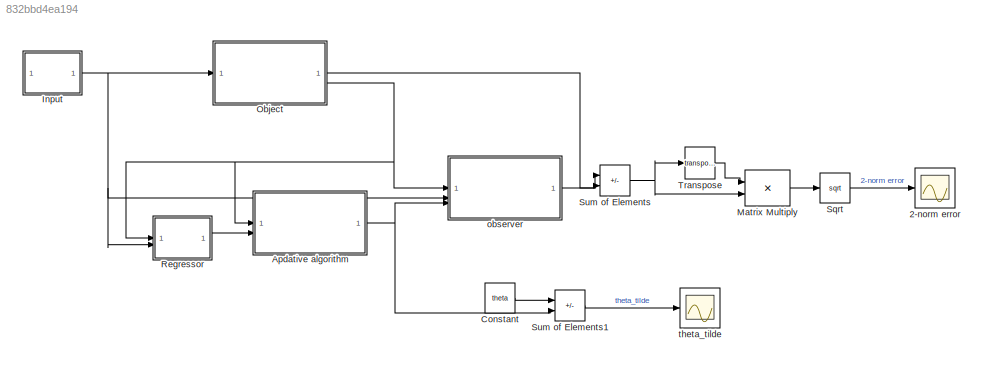
MODEL slx_832bbd4ea194
KIND model
CONFIG AbsTol = auto
CONFIG EnableMultiTasking = off
CONFIG FixedStep = 1e-2
CONFIG MaxStep = auto
CONFIG MinStep = auto
CONFIG RelTol = 1e-3
CONFIG SampleTimeConstraint = Unconstrained
CONFIG SolverName = FixedStepAuto
CONFIG StartTime = 0.0
CONFIG StopTime = 20000
BLOCK [Scope] 2-norm error
  Floating = off
  NumInputPorts = 1
  ScopeSpecificationString = Simulink.scopes.TimeScopeBlockCfg('CurrentConfiguration', extmgr.ConfigurationSet(extmgr.Configuration('Core','General UI',true,'FigureColor',[1 1 1]),extmgr.Configuration('Core','Source UI',true),extmgr.Configuration('Sources','WiredSimulink',true),extmgr.Configuration('Visuals','Time Domain',true,'SerializedDisplays',{struct('MinYLimReal','-5.90564','MaxYLimReal','53.15132','YLabelReal','','MinY...<+1737ch>
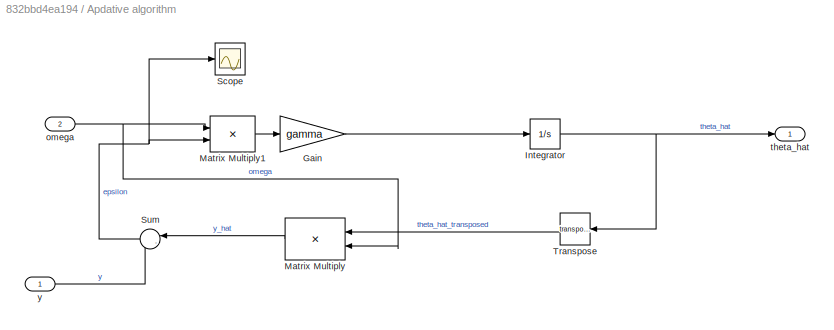
BLOCK [SubSystem] Apdative algorithm
BLOCK [Gain] Apdative algorithm/Gain
  Gain = gamma
BLOCK [Integrator] Apdative algorithm/Integrator
  InitialCondition = [1,1,1,1]
BLOCK [Product] Apdative algorithm/Matrix Multiply
  Multiplication = Matrix(*)
  NameLocation = top
BLOCK [Product] Apdative algorithm/Matrix Multiply1
  Multiplication = Matrix(*)
BLOCK [Scope] Apdative algorithm/Scope
  Floating = off
  NumInputPorts = 1
  ScopeSpecificationString = Simulink.scopes.TimeScopeBlockCfg('CurrentConfiguration', extmgr.ConfigurationSet(extmgr.Configuration('Core','General UI',true),extmgr.Configuration('Core','Source UI',true),extmgr.Configuration('Sources','WiredSimulink',true,'DataLoggingVariableName','ScopeData3'),extmgr.Configuration('Visuals','Time Domain',true,'SerializedDisplays',{struct('MinYLimReal','-0.45086','MaxYLimReal','1.21247','YLab...<+1395ch>
BLOCK [Sum] Apdative algorithm/Sum
  Inputs = |-+
  NameLocation = top
BLOCK [Math] Apdative algorithm/Transpose
  NameLocation = top
  Operator = transpose
BLOCK [Inport] Apdative algorithm/omega
  Port = 2
BLOCK [Outport] Apdative algorithm/theta_hat
BLOCK [Inport] Apdative algorithm/y
BLOCK [Constant] Constant
  Value = theta
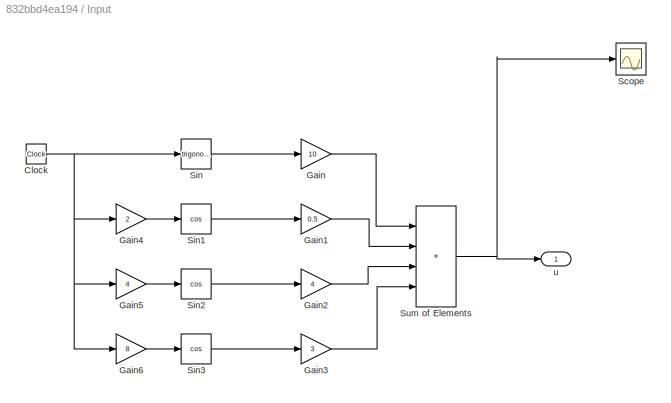
BLOCK [SubSystem] Input
BLOCK [Clock] Input/Clock
BLOCK [Gain] Input/Gain
  Gain = 10
BLOCK [Gain] Input/Gain1
  Commented = on
  Gain = 0.5
BLOCK [Gain] Input/Gain2
  Commented = on
  Gain = 4
BLOCK [Gain] Input/Gain3
  Commented = on
  Gain = 3
BLOCK [Gain] Input/Gain4
  Commented = on
  Gain = 2
BLOCK [Gain] Input/Gain5
  Commented = on
  Gain = 4
BLOCK [Gain] Input/Gain6
  Commented = on
  Gain = 8
BLOCK [Scope] Input/Scope
  Floating = off
  NumInputPorts = 1
  ScopeSpecificationString = Simulink.scopes.TimeScopeBlockCfg('CurrentConfiguration', extmgr.ConfigurationSet(extmgr.Configuration('Core','General UI',true),extmgr.Configuration('Core','Source UI',true),extmgr.Configuration('Sources','WiredSimulink',true,'DataLoggingVariableName','ScopeData2'),extmgr.Configuration('Visuals','Time Domain',true,'SerializedDisplays',{struct('MinYLimReal','-12.5','MaxYLimReal','12.5','YLabelReal...<+1407ch>
BLOCK [Trigonometry] Input/Sin
BLOCK [Trigonometry] Input/Sin1
  Commented = on
  Operator = cos
BLOCK [Trigonometry] Input/Sin2
  Commented = on
  Operator = cos
BLOCK [Trigonometry] Input/Sin3
  Commented = on
  Operator = cos
BLOCK [Sum] Input/Sum of Elements
  IconShape = rectangular
  Inputs = ++++
BLOCK [Outport] Input/u
BLOCK [Product] Matrix Multiply
  Multiplication = Matrix(*)
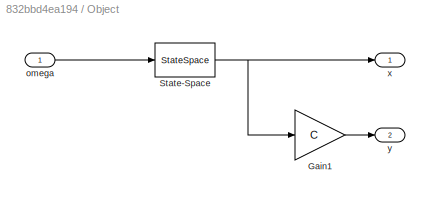
BLOCK [SubSystem] Object
BLOCK [Gain] Object/Gain1
  Gain = C
  Multiplication = Matrix(K*u)
BLOCK [StateSpace] Object/State-Space
  A = A
  B = b
  C = eye(2)
  D = D
  InitialCondition = [1, 1]
BLOCK [Inport] Object/omega
BLOCK [Outport] Object/x
BLOCK [Outport] Object/y
  Port = 2
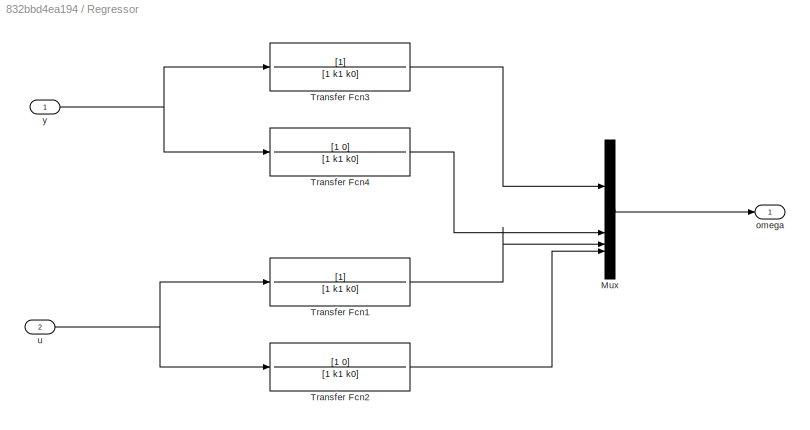
BLOCK [SubSystem] Regressor
BLOCK [Mux] Regressor/Mux
  DisplayOption = bar
  NameLocation = right
BLOCK [TransferFcn] Regressor/Transfer Fcn1
  Denominator = [1 k1 k0]
BLOCK [TransferFcn] Regressor/Transfer Fcn2
  Denominator = [1 k1 k0]
  Numerator = [1 0]
BLOCK [TransferFcn] Regressor/Transfer Fcn3
  Denominator = [1 k1 k0]
BLOCK [TransferFcn] Regressor/Transfer Fcn4
  Denominator = [1 k1 k0]
  Numerator = [1 0]
BLOCK [Outport] Regressor/omega
BLOCK [Inport] Regressor/u
  Port = 2
BLOCK [Inport] Regressor/y
BLOCK [Sqrt] Sqrt
BLOCK [Sum] Sum of Elements
  IconShape = rectangular
  Inputs = +-
BLOCK [Sum] Sum of Elements1
  IconShape = rectangular
  Inputs = +-
BLOCK [Math] Transpose
  Operator = transpose
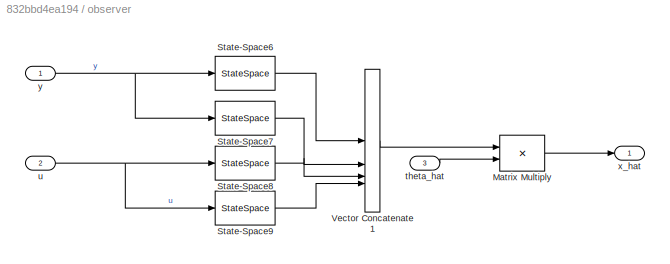
BLOCK [SubSystem] observer
BLOCK [Product] observer/Matrix Multiply
  Multiplication = Matrix(*)
BLOCK [StateSpace] observer/State-Space6
  A = A0
  B = [0;1]
  C = eye(2)
  D = [0; 0]
  InitialCondition = 0
BLOCK [StateSpace] observer/State-Space7
  A = A0
  B = [1;0]
  C = eye(2)
  D = [0; 0]
  InitialCondition = 0
BLOCK [StateSpace] observer/State-Space8
  A = A0
  B = [0;1]
  C = eye(2)
  D = [0; 0]
  InitialCondition = 0
BLOCK [StateSpace] observer/State-Space9
  A = A0
  B = [1;0]
  C = eye(2)
  D = [0; 0]
  InitialCondition = 0
BLOCK [Concatenate] observer/Vector Concatenate1
  ConcatenateDimension = 2
  Mode = Multidimensional array
  NumInputs = 4
BLOCK [Inport] observer/theta_hat
  Port = 3
BLOCK [Inport] observer/u
  Port = 2
BLOCK [Outport] observer/x_hat
BLOCK [Inport] observer/y
BLOCK [Scope] theta_tilde
  Floating = off
  NumInputPorts = 1
  ScopeSpecificationString = Simulink.scopes.TimeScopeBlockCfg('CurrentConfiguration', extmgr.ConfigurationSet(extmgr.Configuration('Core','General UI',true,'FigureColor',[1 1 1]),extmgr.Configuration('Core','Source UI',true),extmgr.Configuration('Sources','WiredSimulink',true,'DataLoggingVariableName','ScopeData1'),extmgr.Configuration('Visuals','Time Domain',true,'SerializedDisplays',{struct('MinYLimReal','-4.69854','MaxYLi...<+2046ch>
LINE Apdative algorithm/Gain:1 -> Apdative algorithm/Integrator:1
NET Apdative algorithm/Integrator:1 -> Apdative algorithm/Transpose:1, Apdative algorithm/theta_hat:1
LINE Apdative algorithm/Matrix Multiply1:1 -> Apdative algorithm/Gain:1
LINE Apdative algorithm/Matrix Multiply:1 -> Apdative algorithm/Sum:1
NET Apdative algorithm/Sum:1 -> Apdative algorithm/Matrix Multiply1:2, Apdative algorithm/Scope:1
LINE Apdative algorithm/Transpose:1 -> Apdative algorithm/Matrix Multiply:1
NET Apdative algorithm/omega:1 -> Apdative algorithm/Matrix Multiply1:1, Apdative algorithm/Matrix Multiply:2
LINE Apdative algorithm/y:1 -> Apdative algorithm/Sum:2
NET Apdative algorithm:1 -> Sum of Elements1:2, observer:3
LINE Constant:1 -> Sum of Elements1:1
NET Input/Clock:1 -> Input/Gain4:1, Input/Gain5:1, Input/Gain6:1, Input/Sin:1
LINE Input/Gain1:1 -> Input/Sum of Elements:2
LINE Input/Gain2:1 -> Input/Sum of Elements:3
LINE Input/Gain3:1 -> Input/Sum of Elements:4
LINE Input/Gain4:1 -> Input/Sin1:1
LINE Input/Gain5:1 -> Input/Sin2:1
LINE Input/Gain6:1 -> Input/Sin3:1
LINE Input/Gain:1 -> Input/Sum of Elements:1
LINE Input/Sin1:1 -> Input/Gain1:1
LINE Input/Sin2:1 -> Input/Gain2:1
LINE Input/Sin3:1 -> Input/Gain3:1
LINE Input/Sin:1 -> Input/Gain:1
NET Input/Sum of Elements:1 -> Input/Scope:1, Input/u:1
NET Input:1 -> Object:1, Regressor:2, observer:2
LINE Matrix Multiply:1 -> Sqrt:1
LINE Object/Gain1:1 -> Object/y:1
NET Object/State-Space:1 -> Object/Gain1:1, Object/x:1
LINE Object/omega:1 -> Object/State-Space:1
LINE Object:1 -> Sum of Elements:1
NET Object:2 -> Apdative algorithm:1, Regressor:1, observer:1
LINE Regressor/Mux:1 -> Regressor/omega:1
LINE Regressor/Transfer Fcn1:1 -> Regressor/Mux:3
LINE Regressor/Transfer Fcn2:1 -> Regressor/Mux:4
LINE Regressor/Transfer Fcn3:1 -> Regressor/Mux:1
LINE Regressor/Transfer Fcn4:1 -> Regressor/Mux:2
NET Regressor/u:1 -> Regressor/Transfer Fcn1:1, Regressor/Transfer Fcn2:1
NET Regressor/y:1 -> Regressor/Transfer Fcn3:1, Regressor/Transfer Fcn4:1
LINE Regressor:1 -> Apdative algorithm:2
LINE Sqrt:1 -> 2-norm error:1
LINE Sum of Elements1:1 -> theta_tilde:1
NET Sum of Elements:1 -> Matrix Multiply:2, Transpose:1
LINE Transpose:1 -> Matrix Multiply:1
LINE observer/Matrix Multiply:1 -> observer/x_hat:1
LINE observer/State-Space6:1 -> observer/Vector Concatenate1:1
LINE observer/State-Space7:1 -> observer/Vector Concatenate1:2
LINE observer/State-Space8:1 -> observer/Vector Concatenate1:3
LINE observer/State-Space9:1 -> observer/Vector Concatenate1:4
LINE observer/Vector Concatenate1:1 -> observer/Matrix Multiply:1
LINE observer/theta_hat:1 -> observer/Matrix Multiply:2
NET observer/u:1 -> observer/State-Space8:1, observer/State-Space9:1
NET observer/y:1 -> observer/State-Space6:1, observer/State-Space7:1
LINE observer:1 -> Sum of Elements:2
note: NET lines group one-source signal fan-out (src -> all destinations, sorted); 1:1 wires keep LINE
